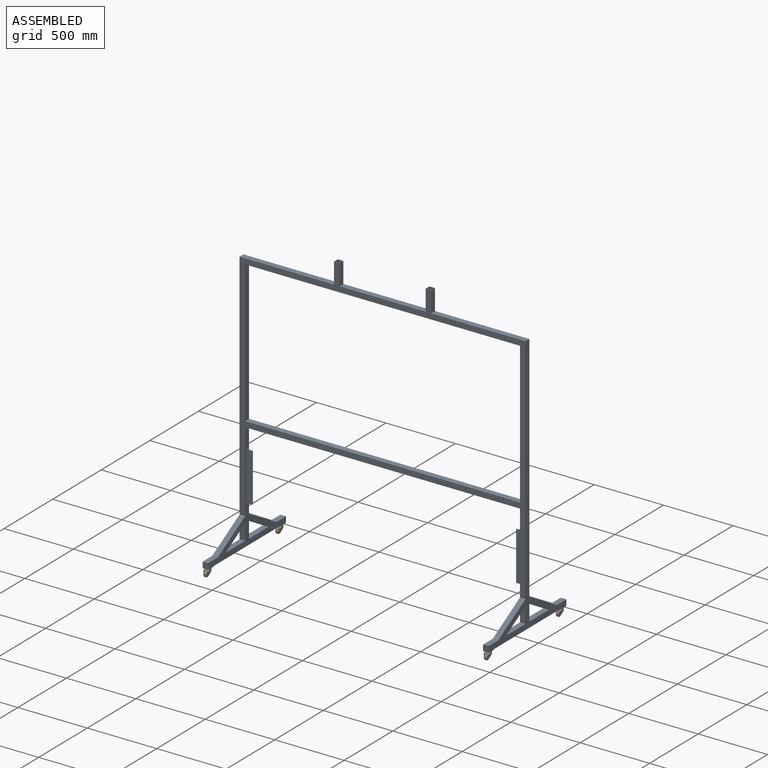
[diagram: assembled view]
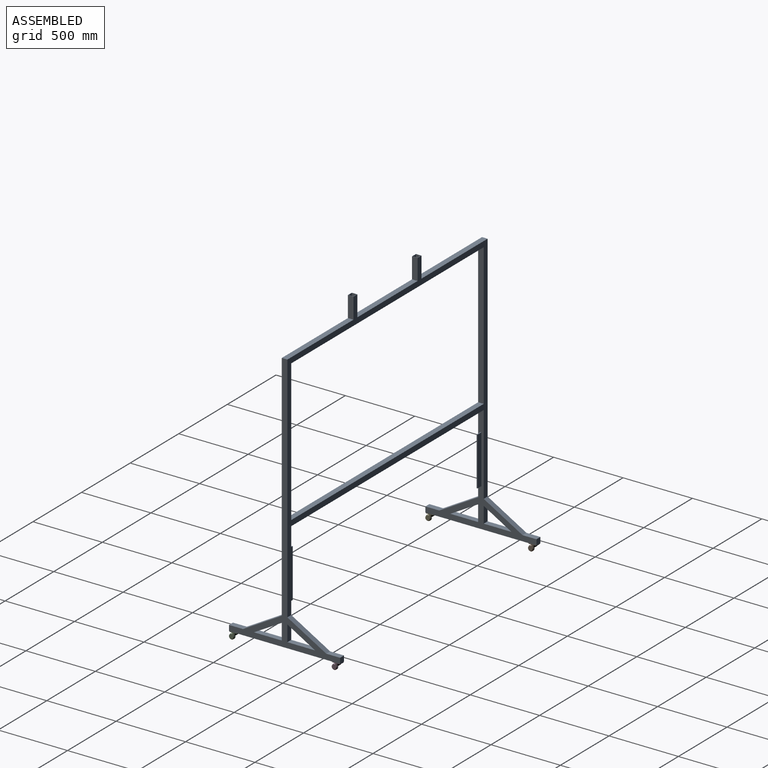
[diagram: assembled view, second angle]
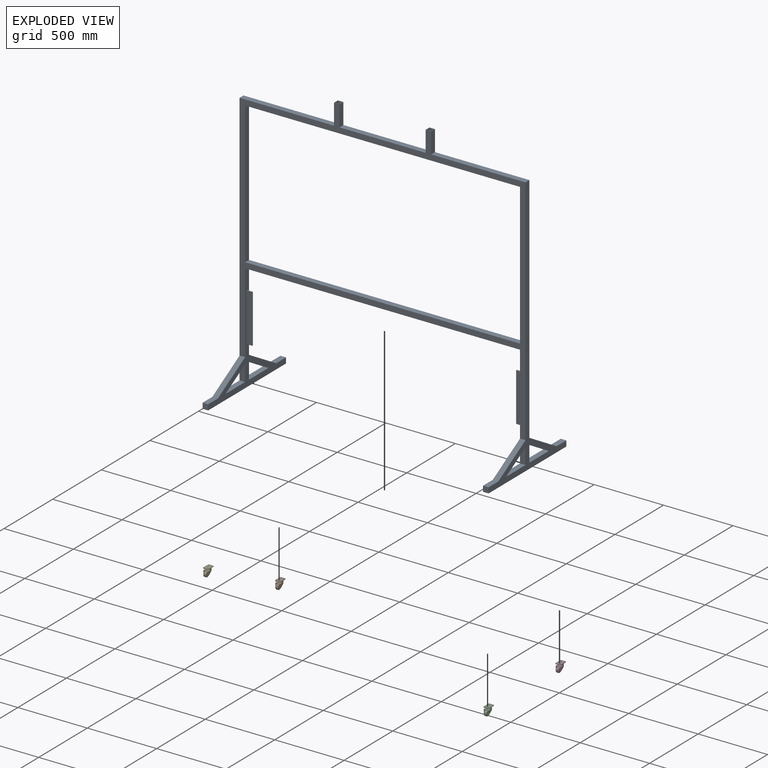
[diagram: exploded view]
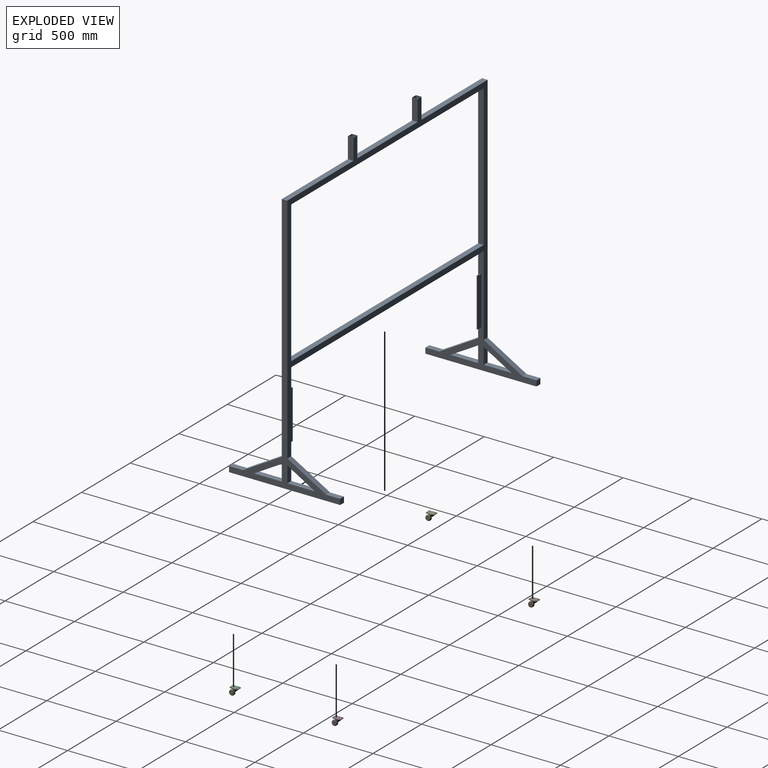
[diagram: exploded view, second angle]
ASSEMBLY  parts=5 mates=4
PART A: 100 faces, bbox 2060x800x2030 mm
  f0: plane 40x40mm, normal (0,0,1), area 375mm2, adj f2,f3,f21,f22,f46,f47,f65,f66
  f1: plane 40x40mm, normal (0,0,1), area 375mm2, adj f2,f3,f11,f24,f46,f47,f55,f68
  f2: plane 2060x1828.34mm, normal (0,-1,0), area 304667.4mm2, adj f0,f1,f8,f9,f10,f11,f12,f13
  f3: plane 2060x1828.34mm, normal (0,1,0), area 304667.4mm2, adj f0,f1,f8,f9,f10,f11,f12,f13
  f4: plane 115.47x40mm, normal (0,-1,0), area 4618.8mm2, adj f13,f15,f31,f32
  f5: plane 115.47x40mm, normal (0,-1,0), area 4618.8mm2, adj f17,f19,f41,f42
  f6: plane 115.47x40mm, normal (0,1,0), area 4618.8mm2, adj f13,f15,f28,f30
  f7: plane 115.47x40mm, normal (0,1,0), area 4618.8mm2, adj f17,f19,f38,f39
  f8: plane 1980x40mm, normal (0,0,1), area 79200mm2, adj f2,f3,f9,f25
  f9: plane 1020x40mm, normal (1,0,0), area 40800mm2, adj f2,f3,f8,f10
  f10: plane 1980x40mm, normal (0,0,-1), area 79200mm2, adj f2,f3,f9,f25
  f11: plane 150x40mm, normal (-1,0,0), area 6000mm2, adj f1,f2,f3,f12
  f12: plane 680x40mm, normal (0,0,1), area 27200mm2, adj f2,f3,f11,f13
  f13: plane 1880x800mm, normal (-1,0,0), area 127770.2mm2, adj f2,f3,f4,f6,f12,f14,f26,f27
  f14: plane 800x40mm, normal (0,0,-1), area 32000mm2, adj f13,f15,f26,f33
  f15: plane 800x780mm, normal (1,0,0), area 81670.3mm2, adj f2,f3,f4,f6,f14,f16,f26,f27
  f16: plane 1980x40mm, normal (0,0,-1), area 79200mm2, adj f2,f3,f15,f17
  f17: plane 800x780mm, normal (-1,0,0), area 81670.3mm2, adj f2,f3,f5,f7,f16,f18,f36,f37
  f18: plane 800x40mm, normal (0,0,-1), area 32000mm2, adj f17,f19,f37,f45
  f19: plane 1880x800mm, normal (1,0,0), area 127770.2mm2, adj f2,f3,f5,f7,f18,f20,f36,f37
  f20: plane 680x40mm, normal (0,0,1), area 27200mm2, adj f2,f3,f19,f21
  f21: plane 150x40mm, normal (1,0,0), area 6000mm2, adj f0,f2,f3,f20
  f22: plane 150x40mm, normal (-1,0,0), area 6000mm2, adj f0,f2,f3,f23
  f23: plane 620x40mm, normal (0,0,1), area 24800mm2, adj f2,f3,f22,f24
  f24: plane 150x40mm, normal (1,0,0), area 6000mm2, adj f1,f2,f3,f23
  f25: plane 1020x40mm, normal (-1,0,0), area 40800mm2, adj f2,f3,f8,f10
  f26: plane 40x40mm, normal (0,1,0), area 1600mm2, adj f13,f14,f15,f27
  f27: plane 100x40mm, normal (0,0,1), area 4000mm2, adj f13,f15,f26,f29
  f28: plane 200x40mm, normal (0,0,1), area 8000mm2, adj f6,f13,f15,f30
  f29: plane 280x161.66mm, normal (0,0.5,0.87), area 12932.6mm2, adj f3,f13,f15,f27
  f30: plane 200x115.47mm, normal (0,-0.5,-0.87), area 9237.6mm2, adj f6,f13,f15,f28
  f31: plane 200x115.47mm, normal (0,0.5,-0.87), area 9237.6mm2, adj f4,f13,f15,f32
  f32: plane 200x40mm, normal (0,0,1), area 8000mm2, adj f4,f13,f15,f31
  f33: plane 40x40mm, normal (0,-1,0), area 1600mm2, adj f13,f14,f15,f34
  f34: plane 100x40mm, normal (0,0,1), area 4000mm2, adj f13,f15,f33,f35
  f35: plane 280x161.66mm, normal (0,-0.5,0.87), area 12932.6mm2, adj f2,f13,f15,f34
  f36: plane 100x40mm, normal (0,0,1), area 4000mm2, adj f17,f19,f37,f40
  f37: plane 40x40mm, normal (0,1,0), area 1600mm2, adj f17,f18,f19,f36
  f38: plane 200x40mm, normal (0,0,1), area 8000mm2, adj f7,f17,f19,f39
  f39: plane 200x115.47mm, normal (0,-0.5,-0.87), area 9237.6mm2, adj f7,f17,f19,f38
  f40: plane 280x161.66mm, normal (0,0.5,0.87), area 12932.6mm2, adj f3,f17,f19,f36
  f41: plane 200x40mm, normal (0,0,1), area 8000mm2, adj f5,f17,f19,f42
  f42: plane 200x115.47mm, normal (0,0.5,-0.87), area 9237.6mm2, adj f5,f17,f19,f41
  f43: plane 280x161.66mm, normal (0,-0.5,0.87), area 12932.6mm2, adj f2,f17,f19,f44
  f44: plane 100x40mm, normal (0,0,1), area 4000mm2, adj f17,f19,f43,f45
  f45: plane 40x40mm, normal (0,-1,0), area 1600mm2, adj f17,f18,f19,f44
  f46: plane 2055x1829.79mm, normal (0,1,0), area 267035mm2, adj f0,f1,f52,f53,f54,f55,f56,f57
  f47: plane 2055x1829.79mm, normal (0,-1,0), area 267035mm2, adj f0,f1,f52,f53,f54,f55,f56,f57
  f48: plane 122.3x35mm, normal (0,1,0), area 4280.5mm2, adj f57,f59,f75,f76
  f49: plane 122.3x35mm, normal (0,1,0), area 4280.5mm2, adj f61,f63,f85,f86
  f50: plane 122.3x35mm, normal (0,-1,0), area 4280.5mm2, adj f57,f59,f72,f74
  f51: plane 122.3x35mm, normal (0,-1,0), area 4280.5mm2, adj f61,f63,f82,f83
  f52: plane 1985x35mm, normal (0,0,-1), area 69475mm2, adj f46,f47,f53,f69
  f53: plane 1025x35mm, normal (-1,0,0), area 35875mm2, adj f46,f47,f52,f54
  f54: plane 1985x35mm, normal (0,0,1), area 69475mm2, adj f46,f47,f53,f69
  f55: plane 152.5x35mm, normal (1,0,0), area 5337.5mm2, adj f1,f46,f47,f56
  f56: plane 680x35mm, normal (0,0,-1), area 23800mm2, adj f46,f47,f55,f57
  f57: plane 1875x795mm, normal (1,0,0), area 112176mm2, adj f46,f47,f48,f50,f56,f58,f70,f71
  f58: plane 795x35mm, normal (0,0,1), area 27825mm2, adj f57,f59,f70,f77
  f59: plane 795x780mm, normal (-1,0,0), area 73851mm2, adj f46,f47,f48,f50,f58,f60,f70,f71
  f60: plane 1985x35mm, normal (0,0,1), area 69475mm2, adj f46,f47,f59,f61
  f61: plane 795x780mm, normal (1,0,0), area 73851mm2, adj f46,f47,f49,f51,f60,f62,f80,f81
  f62: plane 795x35mm, normal (0,0,1), area 27825mm2, adj f61,f63,f81,f89
  f63: plane 1875x795mm, normal (-1,0,0), area 112176mm2, adj f46,f47,f49,f51,f62,f64,f80,f81
  f64: plane 680x35mm, normal (0,0,-1), area 23800mm2, adj f46,f47,f63,f65
  f65: plane 152.5x35mm, normal (-1,0,0), area 5337.5mm2, adj f0,f46,f47,f64
  f66: plane 152.5x35mm, normal (1,0,0), area 5337.5mm2, adj f0,f46,f47,f67
  f67: plane 625x35mm, normal (0,0,-1), area 21875mm2, adj f46,f47,f66,f68
  f68: plane 152.5x35mm, normal (-1,0,0), area 5337.5mm2, adj f1,f46,f47,f67
  f69: plane 1025x35mm, normal (1,0,0), area 35875mm2, adj f46,f47,f52,f54
  f70: plane 35x35mm, normal (0,-1,0), area 1225mm2, adj f57,f58,f59,f71
  f71: plane 98.17x35mm, normal (0,0,-1), area 3435.9mm2, adj f57,f59,f70,f73
  f72: plane 211.83x35mm, normal (0,0,-1), area 7414.1mm2, adj f50,f57,f59,f74
  f73: plane 281.83x162.71mm, normal (0,-0.5,-0.87), area 11390mm2, adj f47,f57,f59,f71
  f74: plane 211.83x122.3mm, normal (0,0.5,0.87), area 8561mm2, adj f50,f57,f59,f72
  f75: plane 211.83x122.3mm, normal (0,-0.5,0.87), area 8561mm2, adj f48,f57,f59,f76
  f76: plane 211.83x35mm, normal (0,0,-1), area 7414.1mm2, adj f48,f57,f59,f75
  f77: plane 35x35mm, normal (0,1,0), area 1225mm2, adj f57,f58,f59,f78
  f78: plane 98.17x35mm, normal (0,0,-1), area 3435.9mm2, adj f57,f59,f77,f79
  f79: plane 281.83x162.71mm, normal (0,0.5,-0.87), area 11390mm2, adj f46,f57,f59,f78
  f80: plane 98.17x35mm, normal (0,0,-1), area 3435.9mm2, adj f61,f63,f81,f84
  f81: plane 35x35mm, normal (0,-1,0), area 1225mm2, adj f61,f62,f63,f80
  f82: plane 211.83x35mm, normal (0,0,-1), area 7414.1mm2, adj f51,f61,f63,f83
  f83: plane 211.83x122.3mm, normal (0,0.5,0.87), area 8561mm2, adj f51,f61,f63,f82
  f84: plane 281.83x162.71mm, normal (0,-0.5,-0.87), area 11390mm2, adj f47,f61,f63,f80
  f85: plane 211.83x35mm, normal (0,0,-1), area 7414.1mm2, adj f49,f61,f63,f86
  f86: plane 211.83x122.3mm, normal (0,-0.5,0.87), area 8561mm2, adj f49,f61,f63,f85
  f87: plane 281.83x162.71mm, normal (0,0.5,-0.87), area 11390mm2, adj f46,f61,f63,f88
  f88: plane 98.17x35mm, normal (0,0,-1), area 3435.9mm2, adj f61,f63,f87,f89
  f89: plane 35x35mm, normal (0,1,0), area 1225mm2, adj f61,f62,f63,f88
  f90: plane 40x6mm, normal (0,0,-1), area 240mm2, adj f15,f91,f93,f94
  f91: plane 350x40mm, normal (0,1,0), area 14000mm2, adj f15,f90,f92,f94
  f92: plane 40x6mm, normal (0,0,1), area 240mm2, adj f15,f91,f93,f94
  f93: plane 350x40mm, normal (0,-1,0), area 14000mm2, adj f15,f90,f92,f94
  f94: plane 350x6mm, normal (1,0,0), area 2100mm2, adj f90,f91,f92,f93
  f95: plane 40x6mm, normal (0,0,-1), area 240mm2, adj f17,f96,f98,f99
  f96: plane 350x40mm, normal (0,1,0), area 14000mm2, adj f17,f95,f97,f99
  f97: plane 40x6mm, normal (0,0,1), area 240mm2, adj f17,f96,f98,f99
  f98: plane 350x40mm, normal (0,-1,0), area 14000mm2, adj f17,f95,f97,f99
  f99: plane 350x6mm, normal (-1,0,0), area 2100mm2, adj f95,f96,f97,f98
PART B: 52 faces, bbox 61.8x71.7x59.4 mm
  f0: cylinder r=2mm len=5mm, axis (1,0,0), area 62.8mm2, adj f41,f49
  f1: plane 36x28.5mm, normal (0,-1,0), area 261mm2, adj f2,f31,f32,f33,f34,f40,f41,f42
  f2: plane 4.91x3mm, normal (0,0,-1), area 14.7mm2, adj f1,f3,f31,f40
  f3: plane 38.6x37.02mm, normal (0,0.6,-0.8), area 352.6mm2, adj f2,f30,f31,f32,f33,f36,f37,f38
  f4: plane 4x2.83mm, normal (0.71,-0.71,0), area 16mm2, adj f5,f27,f28,f29
  f5: cylinder r=2.5mm len=4.27mm, axis (0,0,-1), area 31.4mm2, adj f4,f6,f28,f29
  f6: plane 4x2.83mm, normal (-0.71,0.71,0), area 16mm2, adj f5,f27,f28,f29
  f7: plane 28x4mm, normal (0,-1,0), area 112mm2, adj f8,f23,f28,f29
  f8: cylinder r=6mm len=6mm, axis (0,0,-1), area 37.7mm2, adj f7,f9,f28,f29
  f9: plane 48x4mm, normal (1,0,0), area 192mm2, adj f8,f10,f28,f29
  f10: cylinder r=6mm len=6mm, axis (0,0,-1), area 37.7mm2, adj f9,f11,f28,f29
  f11: plane 28x4mm, normal (0,1,0), area 112mm2, adj f10,f12,f28,f29
  f12: cylinder r=6mm len=6mm, axis (0,0,-1), area 37.7mm2, adj f11,f13,f28,f29
  f13: plane 48x4mm, normal (-1,0,0), area 192mm2, adj f12,f23,f28,f29
  f14: cylinder r=2.5mm len=4.27mm, axis (0,0,-1), area 31.4mm2, adj f15,f24,f28,f29
  f15: plane 4x2.83mm, normal (0.71,0.71,0), area 16mm2, adj f14,f16,f28,f29
  f16: cylinder r=2.5mm len=4.27mm, axis (0,0,-1), area 31.4mm2, adj f15,f24,f28,f29
  f17: cylinder r=2.5mm len=4.27mm, axis (0,0,-1), area 31.4mm2, adj f18,f25,f28,f29
  f18: plane 4x2.83mm, normal (0.71,0.71,0), area 16mm2, adj f17,f19,f28,f29
  f19: cylinder r=2.5mm len=4.27mm, axis (0,0,-1), area 31.4mm2, adj f18,f25,f28,f29
  f20: plane 4x2.83mm, normal (-0.71,0.71,0), area 16mm2, adj f21,f26,f28,f29
  f21: cylinder r=2.5mm len=4.27mm, axis (0,0,-1), area 31.4mm2, adj f20,f22,f28,f29
  f22: plane 4x2.83mm, normal (0.71,-0.71,0), area 16mm2, adj f21,f26,f28,f29
  f23: cylinder r=6mm len=6mm, axis (0,0,-1), area 37.7mm2, adj f7,f13,f28,f29
  f24: plane 4x2.83mm, normal (-0.71,-0.71,0), area 16mm2, adj f14,f16,f28,f29
  f25: plane 4x2.83mm, normal (-0.71,-0.71,0), area 16mm2, adj f17,f19,f28,f29
  f26: cylinder r=2.5mm len=4.27mm, axis (0,0,-1), area 31.4mm2, adj f20,f22,f28,f29
  f27: cylinder r=2.5mm len=4.27mm, axis (0,0,-1), area 31.4mm2, adj f4,f6,f28,f29
  f28: plane 60x40mm, normal (0,0,1), area 2210.6mm2, adj f4,f5,f6,f7,f8,f9,f10,f11
  f29: plane 60x40mm, normal (0,0,-1), area 1135.3mm2, adj f4,f5,f6,f7,f8,f9,f10,f11
  f30: cylinder r=18.5mm len=37mm, axis (0,0,1), area 1495.6mm2, adj f3,f29,f35,f36,f37
  f31: plane 32.35x20.18mm, normal (1,0,0), area 499.5mm2, adj f1,f2,f3,f34,f35,f37
  f32: plane 32.35x20.18mm, normal (-1,0,0), area 499.5mm2, adj f1,f3,f33,f34,f35,f36
  f33: plane 4.91x3mm, normal (0,0,-1), area 14.7mm2, adj f1,f3,f32,f41
  f34: plane 36x9.89mm, normal (0,0,1), area 146.2mm2, adj f1,f31,f32,f35
  f35: torus R=23.5mm, axis (0,0,-1), area 354.8mm2, adj f30,f31,f32,f34,f36,f37
  f36: cylinder r=5mm len=21.92mm, axis (0,0,1), area 21.7mm2, adj f3,f30,f32,f35
  f37: cylinder r=5mm len=21.92mm, axis (0,0,1), area 21.7mm2, adj f3,f30,f31,f35
  f38: cylinder r=15.5mm len=31mm, axis (0,0,1), area 1419.5mm2, adj f3,f39,f43,f44,f45
  f39: plane 31x31mm, normal (0,0,-1), area 754.8mm2, adj f38
  f40: plane 31.49x20.18mm, normal (-1,0,0), area 439.5mm2, adj f1,f2,f3,f42,f43,f45,f46
  f41: plane 31.49x20.18mm, normal (1,0,0), area 439.4mm2, adj f0,f1,f3,f33,f42,f43,f44
  f42: plane 30x6.91mm, normal (0,0,-1), area 96.3mm2, adj f1,f40,f41,f43
  f43: torus R=23.5mm, axis (0,0,-1), area 455.4mm2, adj f38,f40,f41,f42,f44,f45
  f44: cylinder r=8mm len=21.92mm, axis (0,0,1), area 33.6mm2, adj f3,f38,f41,f43
  f45: cylinder r=8mm len=21.92mm, axis (0,0,1), area 33.6mm2, adj f3,f38,f40,f43
  f46: cylinder r=2mm len=5mm, axis (1,0,0), area 62.8mm2, adj f40,f48
  f47: cylinder r=19mm len=38mm, axis (-1,0,0), area 1193.8mm2, adj f50,f51
  f48: plane 28x28mm, normal (1,0,0), area 603.2mm2, adj f46,f51
  f49: plane 28x28mm, normal (-1,0,0), area 603.2mm2, adj f0,f50
  f50: torus R=14mm, axis (1,0,0), area 848mm2, adj f47,f49
  f51: torus R=14mm, axis (1,0,0), area 848mm2, adj f47,f48
PART C: same geometry as B
PART D: same geometry as B
PART E: same geometry as B
PLACE A t=(-119.71,320.66,-52.61)mm
PLACE B t=(-1129.71,670.66,-924.27)mm
PLACE C t=(890.29,-69.34,-924.27)mm
PLACE D t=(890.29,670.66,-924.27)mm
PLACE E t=(-1129.71,-69.34,-924.27)mm
MATE fastened E.f28 <-> A.f14  axis (0,0,1) through (-1129.71,-99.34,-920.27)mm
MATE fastened D.f28 <-> A.f18  axis (0,0,1) through (890.29,700.66,-920.27)mm
MATE fastened B.f28 <-> A.f14  axis (0,0,1) through (-1129.71,700.66,-920.27)mm
MATE fastened C.f28 <-> A.f18  axis (0,0,1) through (890.29,-99.34,-920.27)mm
